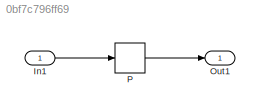
MODEL slx_0bf7c796ff69
KIND model
CONFIG AbsTol = auto
CONFIG EnableMultiTasking = off
CONFIG FixedStep = auto
CONFIG MaxStep = auto
CONFIG MinStep = auto
CONFIG RelTol = 1e-3
CONFIG SampleTimeConstraint = Unconstrained
CONFIG Solver = FixedStepDiscrete
CONFIG SolverName = FixedStepDiscrete
CONFIG StartTime = 0.0
CONFIG StopTime = 10.0
BLOCK [Inport] In1
  IconDisplay = Port number
  OutDataTypeStr = uint16
  PortDimensions = 2
BLOCK [Outport] Out1
  IconDisplay = Port number
BLOCK [Lookup_n-D] P
  BreakpointsForDimension1 = [18.808414724824;73.4948539294963;91.9813855929279]
  BreakpointsForDimension1DataTypeStr = double
  BreakpointsForDimension2 = [36.4456868981495;47.1455248733109;50.8737916317156;61.3340871672556;95.1393255722609]
  BreakpointsForDimension2DataTypeStr = double
  BreakpointsForDimension3 = [5, 7]
  ExtrapMethod = Clip
  FractionDataTypeStr = single
  IntermediateResultsDataTypeStr = uint8
  InternalRulePriority = Speed
  OutDataTypeStr = Inherit: Inherit from 'Table data'
  Ports = [1, 1]
  RndMeth = Round
  SaturateOnIntegerOverflow = on
  Table = [51.6368237888522 46.3188728888604 94.8981341572206 31.2756786194259 37.6001993378982;110.376662285438 74.2645099817502 25.8262509517211 110.885189972879 55.1307305165106;111.105634959711 102.292365025729 23.3934750757649 54.9775629106838 74.6165202641403]
  UseLastTableValue = on
  UseOneInputPortForAllInputData = on
LINE In1:1 -> P:1
LINE P:1 -> Out1:1
